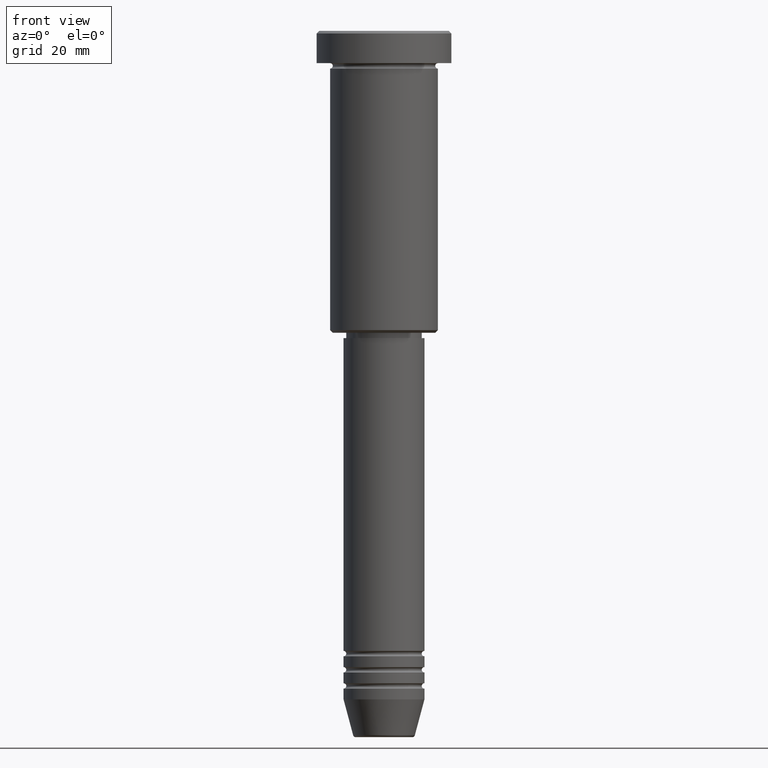
[diagram: clean part render]
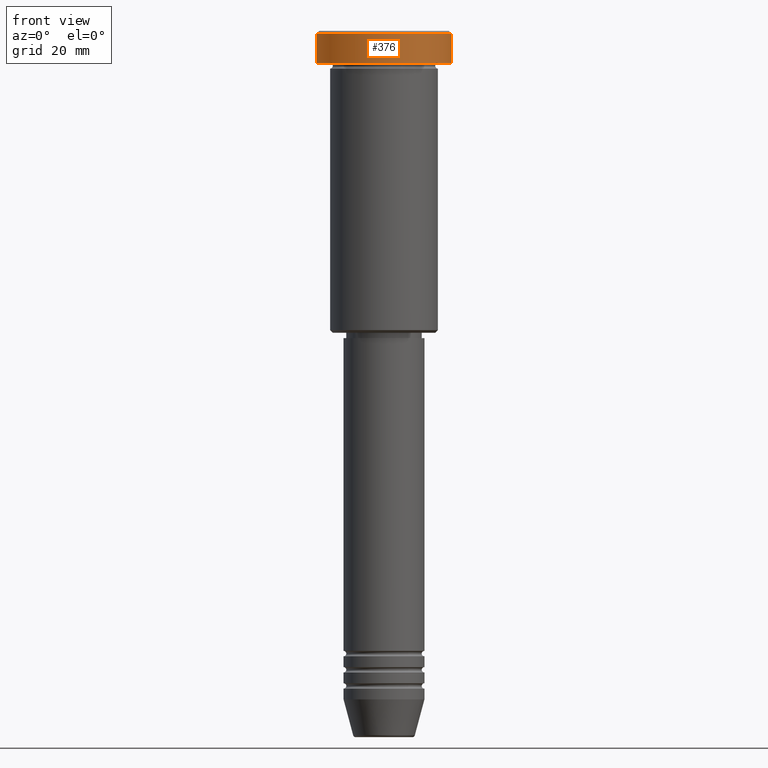
[diagram: same view with one face highlighted and labeled with its STEP entity id]
A machine part, front view. The second image highlights one B-rep face of the part: STEP entity #376.
In plain terms, the highlighted cylindrical surface (partial cylindrical patch) has radius 12.5 mm, axis along (-0, -0, 1).
Its self-contained STEP definition (entity closure, byte-faithful):
#12 = VERTEX_POINT ( 'NONE', #33 ) ;
#33 = CARTESIAN_POINT ( 'NONE',  ( 12.50000000000000000, 0.000000000000000000, -0.4999999999999917843 ) ) ;
#115 = CIRCLE ( 'NONE', #768, 12.50000000000000000 ) ;
#151 = ORIENTED_EDGE ( 'NONE', *, *, #522, .T. ) ;
#154 = ORIENTED_EDGE ( 'NONE', *, *, #270, .T. ) ;
#167 = DIRECTION ( 'NONE',  ( -0.000000000000000000, -0.000000000000000000, 1.000000000000000000 ) ) ;
#187 = EDGE_CURVE ( 'NONE', #1022, #882, #115, .T. ) ;
#253 = EDGE_CURVE ( 'NONE', #1022, #618, #382, .T. ) ;
#265 = CARTESIAN_POINT ( 'NONE',  ( 0.000000000000000000, 0.000000000000000000, -5.999999999999996447 ) ) ;
#270 = EDGE_CURVE ( 'NONE', #882, #12, #907, .T. ) ;
#272 = CYLINDRICAL_SURFACE ( 'NONE', #331, 12.50000000000000000 ) ;
#302 = DIRECTION ( 'NONE',  ( -0.000000000000000000, -0.000000000000000000, 1.000000000000000000 ) ) ;
#320 = ORIENTED_EDGE ( 'NONE', *, *, #253, .F. ) ;
#331 = AXIS2_PLACEMENT_3D ( 'NONE', #634, #448, #820 ) ;
#376 = ADVANCED_FACE ( 'NONE', ( #814 ), #272, .T. ) ;
#382 = LINE ( 'NONE', #388, #518 ) ;
#388 = CARTESIAN_POINT ( 'NONE',  ( -12.50000000000000000, 1.530808498934191521E-15, 0.000000000000000000 ) ) ;
#399 = CARTESIAN_POINT ( 'NONE',  ( 12.50000000000000000, 0.000000000000000000, -5.999999999999996447 ) ) ;
#422 = DIRECTION ( 'NONE',  ( 1.000000000000000000, 0.000000000000000000, 0.000000000000000000 ) ) ;
#428 = DIRECTION ( 'NONE',  ( 0.000000000000000000, 0.000000000000000000, -1.000000000000000000 ) ) ;
#448 = DIRECTION ( 'NONE',  ( -0.000000000000000000, -0.000000000000000000, 1.000000000000000000 ) ) ;
#478 = VECTOR ( 'NONE', #302, 1000.000000000000000 ) ;
#518 = VECTOR ( 'NONE', #748, 1000.000000000000000 ) ;
#522 = EDGE_CURVE ( 'NONE', #12, #618, #864, .T. ) ;
#583 = CARTESIAN_POINT ( 'NONE',  ( 0.000000000000000000, 0.000000000000000000, -0.4999999999999917843 ) ) ;
#590 = CARTESIAN_POINT ( 'NONE',  ( -12.50000000000000000, 1.530808498934191521E-15, -5.999999999999996447 ) ) ;
#618 = VERTEX_POINT ( 'NONE', #1162 ) ;
#634 = CARTESIAN_POINT ( 'NONE',  ( 0.000000000000000000, 0.000000000000000000, 0.000000000000000000 ) ) ;
#731 = ORIENTED_EDGE ( 'NONE', *, *, #187, .T. ) ;
#748 = DIRECTION ( 'NONE',  ( -0.000000000000000000, -0.000000000000000000, 1.000000000000000000 ) ) ;
#768 = AXIS2_PLACEMENT_3D ( 'NONE', #265, #167, #422 ) ;
#814 = FACE_OUTER_BOUND ( 'NONE', #1015, .T. ) ;
#820 = DIRECTION ( 'NONE',  ( 1.000000000000000000, 0.000000000000000000, 0.000000000000000000 ) ) ;
#838 = CARTESIAN_POINT ( 'NONE',  ( 12.50000000000000000, 0.000000000000000000, 0.000000000000000000 ) ) ;
#864 = CIRCLE ( 'NONE', #1092, 12.50000000000000000 ) ;
#882 = VERTEX_POINT ( 'NONE', #399 ) ;
#907 = LINE ( 'NONE', #838, #478 ) ;
#1015 = EDGE_LOOP ( 'NONE', ( #320, #731, #154, #151 ) ) ;
#1022 = VERTEX_POINT ( 'NONE', #590 ) ;
#1035 = DIRECTION ( 'NONE',  ( 1.000000000000000000, 0.000000000000000000, 0.000000000000000000 ) ) ;
#1092 = AXIS2_PLACEMENT_3D ( 'NONE', #583, #428, #1035 ) ;
#1162 = CARTESIAN_POINT ( 'NONE',  ( -12.50000000000000000, 1.530808498934191521E-15, -0.4999999999999917843 ) ) ;